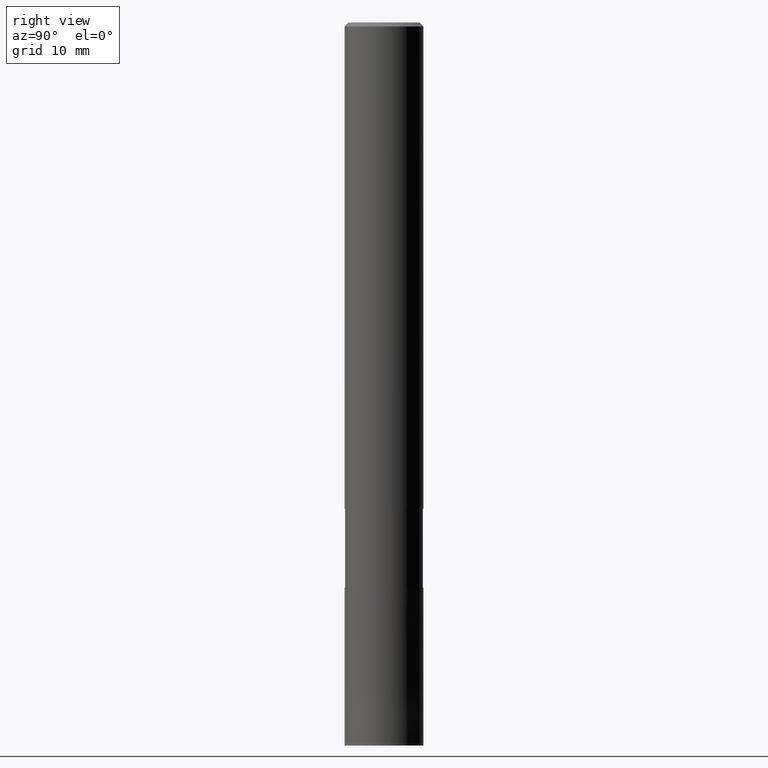
[diagram: clean part render]
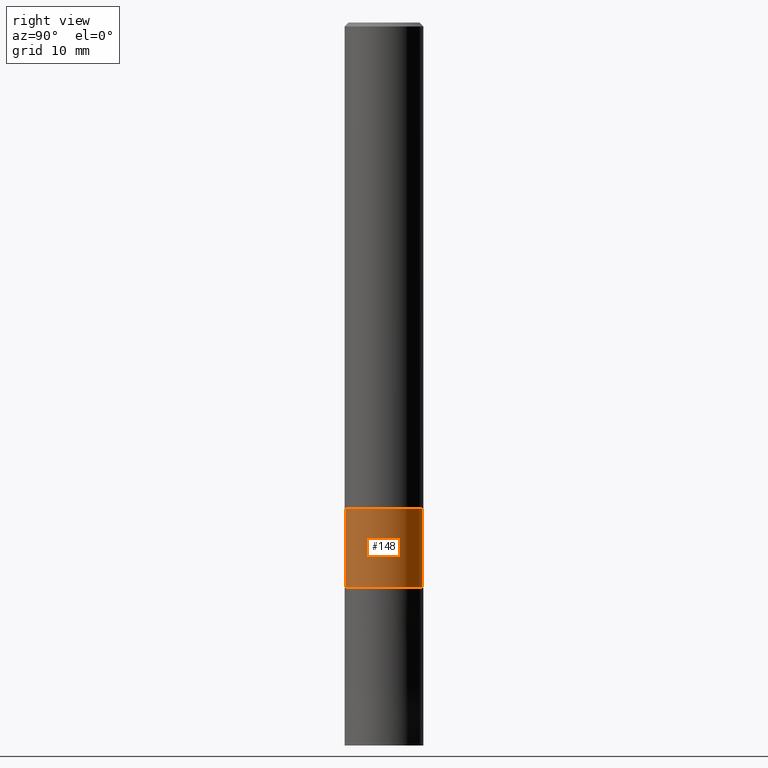
[diagram: same view with one face highlighted and labeled with its STEP entity id]
A machine part, right view. The second image highlights one B-rep face of the part: STEP entity #148.
In plain terms, the highlighted cylindrical surface (partial cylindrical patch) has radius 5.91 mm, axis along (-0, -0, 1).
Its self-contained STEP definition (entity closure, byte-faithful):
#90=EDGE_CURVE('',#98,#94,#214,.T.);
#94=VERTEX_POINT('',#218);
#98=VERTEX_POINT('',#223);
#104=VERTEX_POINT('',#229);
#138=EDGE_CURVE('',#104,#98,#267,.T.);
#148=ADVANCED_FACE('',(#278),#279,.T.);
#162=EDGE_CURVE('',#172,#94,#296,.T.);
#172=VERTEX_POINT('',#306);
#178=EDGE_CURVE('',#172,#104,#312,.T.);
#214=LINE('',#342,#343);
#218=CARTESIAN_POINT('',(7.23736232077256E-016,-5.90995,-74.0));
#223=CARTESIAN_POINT('',(7.23736232077256E-016,-5.90995,-86.0));
#229=CARTESIAN_POINT('',(0.0,5.90995,-86.0));
#267=CIRCLE('',#410,5.90995);
#278=FACE_OUTER_BOUND('',#421,.T.);
#279=CYLINDRICAL_SURFACE('',#422,5.90995);
#296=CIRCLE('',#445,5.90995);
#306=CARTESIAN_POINT('',(0.0,5.90995,-74.0));
#312=LINE('',#465,#466);
#342=CARTESIAN_POINT('',(7.23736232077256E-016,-5.90995,-80.0));
#343=VECTOR('',#498,1.0);
#410=AXIS2_PLACEMENT_3D('',#554,#555,#556);
#421=EDGE_LOOP('',(#570,#571,#572,#573));
#422=AXIS2_PLACEMENT_3D('',#574,#575,#576);
#445=AXIS2_PLACEMENT_3D('',#596,#597,#598);
#465=CARTESIAN_POINT('',(-7.23736232077256E-016,5.90995,-80.0));
#466=VECTOR('',#612,1.0);
#498=DIRECTION('',(-0.0,-0.0,1.0));
#554=CARTESIAN_POINT('',(0.0,0.0,-86.0));
#555=DIRECTION('',(0.0,0.0,-1.0));
#556=DIRECTION('',(0.0,1.0,0.0));
#570=ORIENTED_EDGE('',*,*,#178,.F.);
#571=ORIENTED_EDGE('',*,*,#162,.T.);
#572=ORIENTED_EDGE('',*,*,#90,.F.);
#573=ORIENTED_EDGE('',*,*,#138,.F.);
#574=CARTESIAN_POINT('',(0.0,0.0,-80.0));
#575=DIRECTION('',(-0.0,-0.0,1.0));
#576=DIRECTION('',(0.0,1.0,0.0));
#596=CARTESIAN_POINT('',(0.0,0.0,-74.0));
#597=DIRECTION('',(0.0,0.0,-1.0));
#598=DIRECTION('',(0.0,1.0,0.0));
#612=DIRECTION('',(0.0,0.0,-1.0));